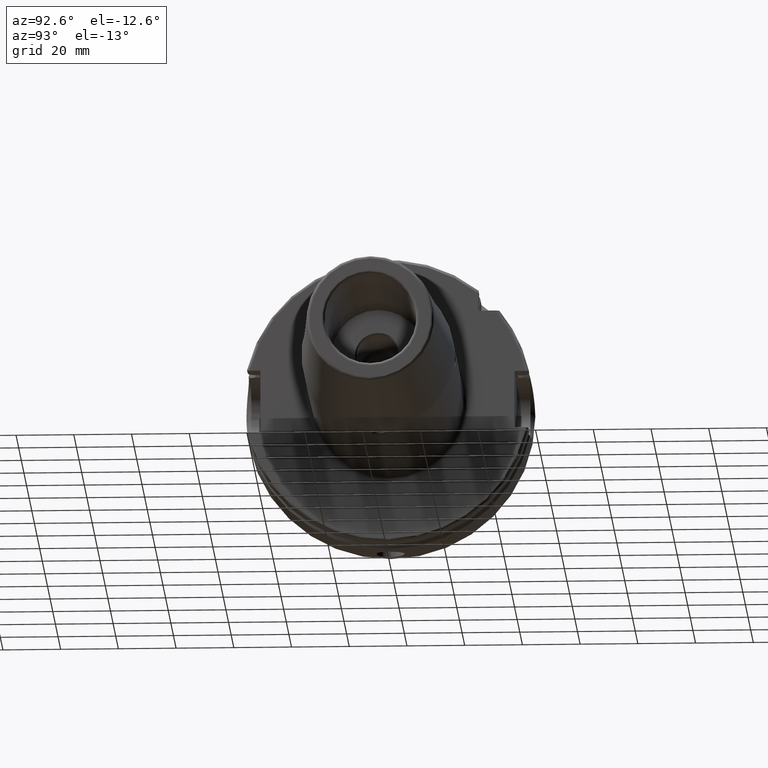
[diagram: clean part render]
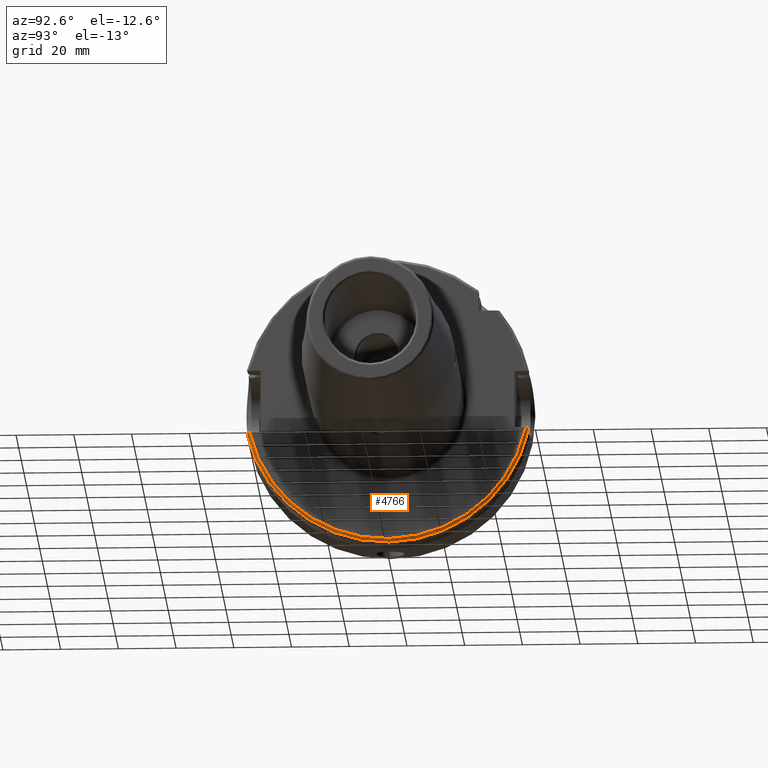
[diagram: same view with one face highlighted and labeled with its STEP entity id]
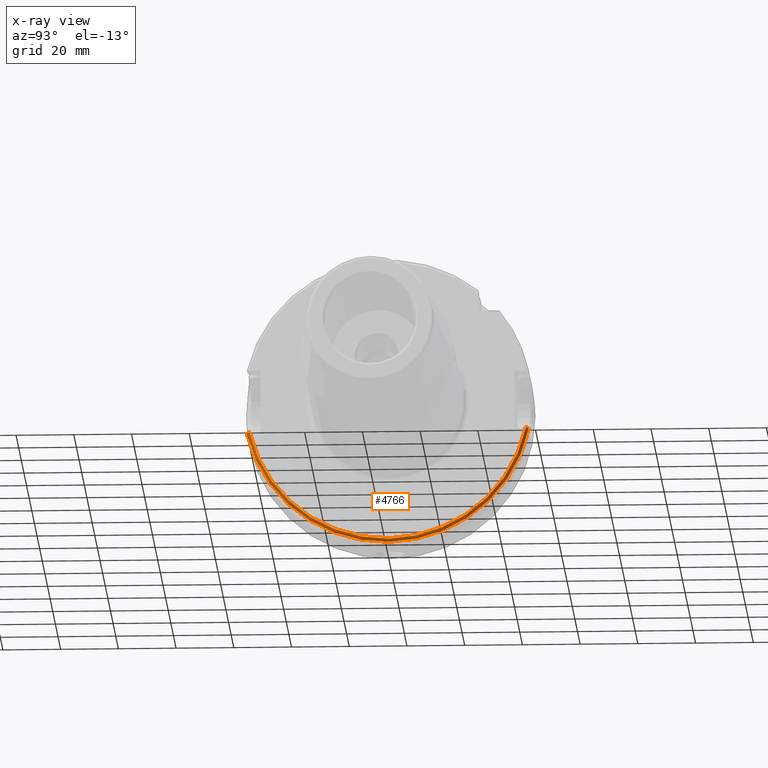
[diagram: x-ray of the same camera — body ghosted, the highlighted face saturated]
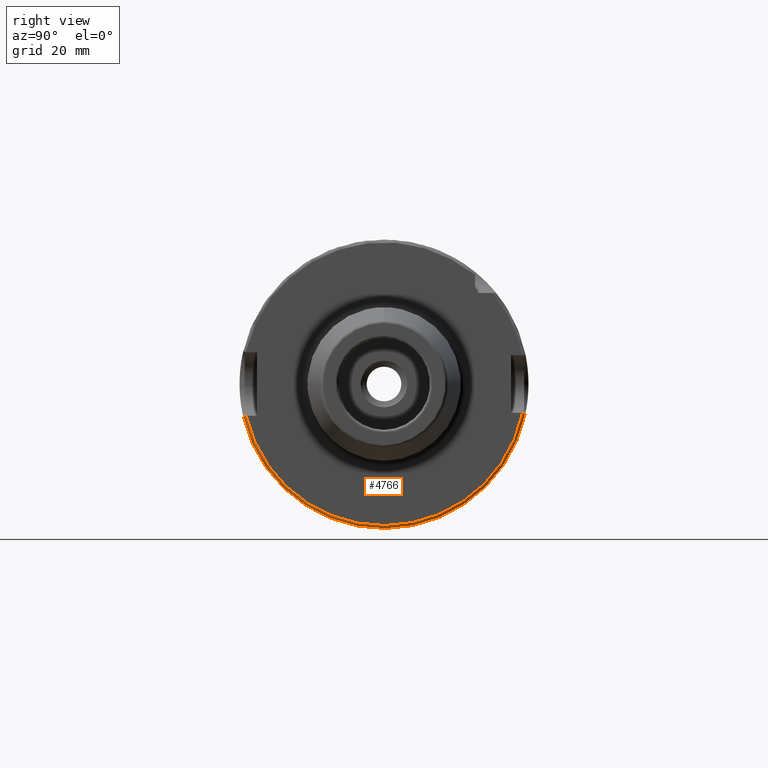
[diagram: same view with one face highlighted and labeled with its STEP entity id]
A machine part, auxiliary view. The second image highlights one B-rep face of the part: STEP entity #4766.
The next image is the same camera in x-ray: the body ghosted, the highlighted face saturated — about 0% of this face is hidden behind the body in this view.
A second angle (right view) of the same face is appended — the face is thin or edge-on in the first view.
In plain terms, the highlighted toroidal blend (fillet) surface has major radius 49 mm and minor (blend) radius 1 mm.
Its self-contained STEP definition (entity closure, byte-faithful):
#1479=CARTESIAN_POINT('',(2.8E1,0.E0,0.E0));
#1480=DIRECTION('',(-1.E0,0.E0,0.E0));
#1481=DIRECTION('',(0.E0,9.781062299454E-1,-2.081062299454E-1));
#1482=AXIS2_PLACEMENT_3D('',#1479,#1480,#1481);
#1484=CARTESIAN_POINT('',(2.9E1,0.E0,0.E0));
#1485=DIRECTION('',(1.E0,0.E0,0.E0));
#1486=DIRECTION('',(0.E0,-9.744764396990E-1,-2.244897959184E-1));
#1487=AXIS2_PLACEMENT_3D('',#1484,#1485,#1486);
#1489=CARTESIAN_POINT('',(2.8E1,-4.866725793949E1,-1.146725793949E1));
#1490=CARTESIAN_POINT('',(2.808903405147E1,-4.866725793949E1,
-1.146725793949E1));
#1491=CARTESIAN_POINT('',(2.826286141934E1,-4.864843979087E1,
-1.144843979087E1));
#1492=CARTESIAN_POINT('',(2.852290225254E1,-4.855781776817E1,
-1.135781776817E1));
#1493=CARTESIAN_POINT('',(2.874626718586E1,-4.840561144729E1,
-1.120561144729E1));
#1494=CARTESIAN_POINT('',(2.885475441046E1,-4.827448132205E1,
-1.107448132205E1));
#1495=CARTESIAN_POINT('',(2.889836210242E1,-4.82E1,-1.1E1));
#1619=CARTESIAN_POINT('',(2.885404575136E1,4.85E1,-1.E1));
#1620=CARTESIAN_POINT('',(2.880681021705E1,4.856564594132E1,-1.006564594132E1));
#1621=CARTESIAN_POINT('',(2.869605876437E1,4.868078341490E1,-1.018078341490E1));
#1622=CARTESIAN_POINT('',(2.848019267735E1,4.881276511994E1,-1.031276511994E1));
#1623=CARTESIAN_POINT('',(2.824061575870E1,4.888927420802E1,-1.038927420802E1));
#1624=CARTESIAN_POINT('',(2.808106780979E1,4.890531149727E1,-1.040531149727E1));
#1625=CARTESIAN_POINT('',(2.8E1,4.890531149727E1,-1.040531149727E1));
#1627=CARTESIAN_POINT('',(2.9E1,4.796873982085E1,-1.E1));
#1628=CARTESIAN_POINT('',(2.9E1,4.806419844376E1,-1.E1));
#1629=CARTESIAN_POINT('',(2.897429180599E1,4.824808338355E1,-1.E1));
#1630=CARTESIAN_POINT('',(2.890260559517E1,4.841859886574E1,-1.E1));
#1631=CARTESIAN_POINT('',(2.885404575136E1,4.85E1,-1.E1));
#1687=CARTESIAN_POINT('',(2.889836210242E1,-4.82E1,-1.1E1));
#1688=CARTESIAN_POINT('',(2.893255308148E1,-4.812827501253E1,-1.1E1));
#1689=CARTESIAN_POINT('',(2.898276312422E1,-4.798101608307E1,-1.1E1));
#1690=CARTESIAN_POINT('',(2.9E1,-4.782766877990E1,-1.1E1));
#1691=CARTESIAN_POINT('',(2.9E1,-4.774934554525E1,-1.1E1));
#3135=VERTEX_POINT('',#1489);
#3136=VERTEX_POINT('',#1495);
#3137=VERTEX_POINT('',#1691);
#3138=VERTEX_POINT('',#1627);
#3139=VERTEX_POINT('',#1631);
#3140=VERTEX_POINT('',#1625);
#4748=CARTESIAN_POINT('',(2.8E1,0.E0,0.E0));
#4749=DIRECTION('',(1.E0,0.E0,0.E0));
#4750=DIRECTION('',(0.E0,9.999994084209E-1,-1.087730577645E-3));
#4751=AXIS2_PLACEMENT_3D('',#4748,#4749,#4750);
#4752=TOROIDAL_SURFACE('',#4751,4.9E1,1.E0);
#4753=ORIENTED_EDGE('',*,*,#4679,.T.);
#4755=ORIENTED_EDGE('',*,*,#4754,.T.);
#4757=ORIENTED_EDGE('',*,*,#4756,.T.);
#4759=ORIENTED_EDGE('',*,*,#4758,.T.);
#4761=ORIENTED_EDGE('',*,*,#4760,.T.);
#4763=ORIENTED_EDGE('',*,*,#4762,.T.);
#4764=EDGE_LOOP('',(#4753,#4755,#4757,#4759,#4761,#4763));
#4765=FACE_OUTER_BOUND('',#4764,.F.);
#4766=ADVANCED_FACE('',(#4765),#4752,.T.);
#1483=CIRCLE('',#1482,5.E1);
#1488=CIRCLE('',#1487,4.9E1);
#1496=B_SPLINE_CURVE_WITH_KNOTS('',3,(#1489,#1490,#1491,#1492,#1493,#1494,
#1495),.UNSPECIFIED.,.F.,.F.,(4,1,1,1,4),(0.E0,2.5E-1,5.E-1,7.5E-1,1.E0),
.UNSPECIFIED.);
#1626=B_SPLINE_CURVE_WITH_KNOTS('',3,(#1619,#1620,#1621,#1622,#1623,#1624,
#1625),.UNSPECIFIED.,.F.,.F.,(4,1,1,1,4),(0.E0,2.5E-1,5.E-1,7.5E-1,1.E0),
.UNSPECIFIED.);
#1632=B_SPLINE_CURVE_WITH_KNOTS('',3,(#1627,#1628,#1629,#1630,#1631),
.UNSPECIFIED.,.F.,.F.,(4,1,4),(0.E0,5.E-1,1.E0),.UNSPECIFIED.);
#1692=B_SPLINE_CURVE_WITH_KNOTS('',3,(#1687,#1688,#1689,#1690,#1691),
.UNSPECIFIED.,.F.,.F.,(4,1,4),(0.E0,5.E-1,1.E0),.UNSPECIFIED.);
#4679=EDGE_CURVE('',#3140,#3135,#1483,.T.);
#4754=EDGE_CURVE('',#3135,#3136,#1496,.T.);
#4756=EDGE_CURVE('',#3136,#3137,#1692,.T.);
#4758=EDGE_CURVE('',#3137,#3138,#1488,.T.);
#4760=EDGE_CURVE('',#3138,#3139,#1632,.T.);
#4762=EDGE_CURVE('',#3139,#3140,#1626,.T.);